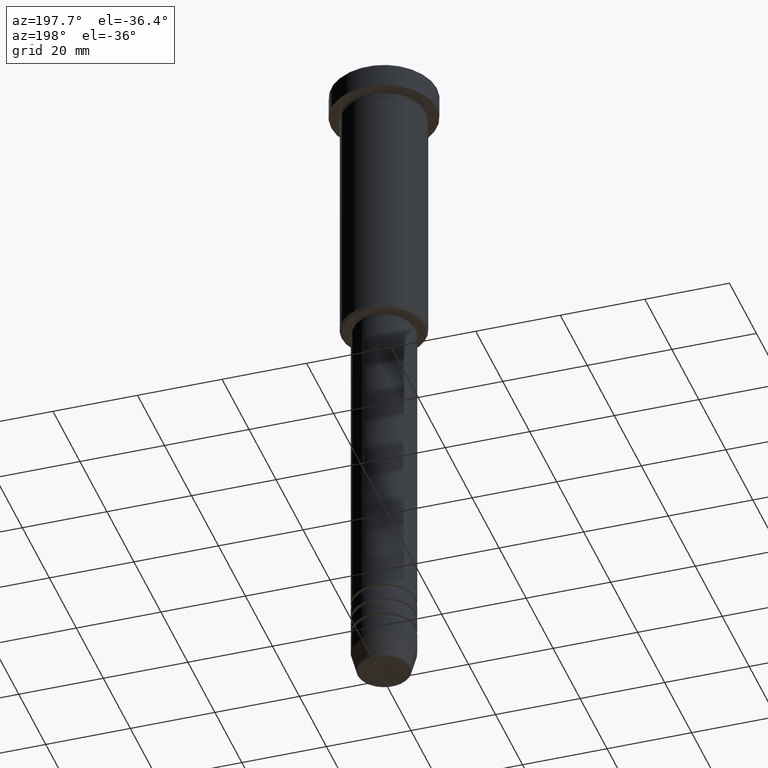
[diagram: clean part render]
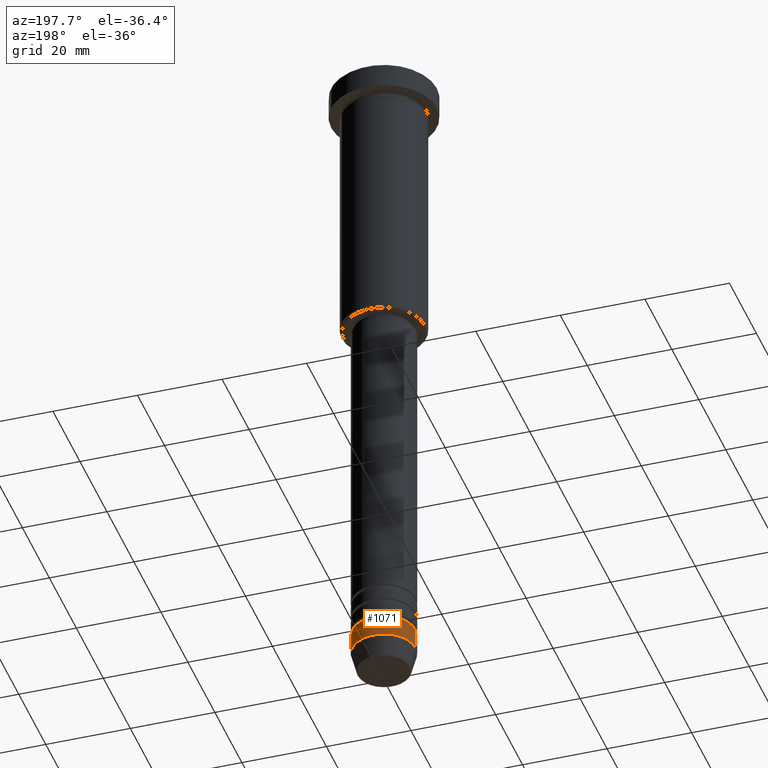
[diagram: same view with one face highlighted and labeled with its STEP entity id]
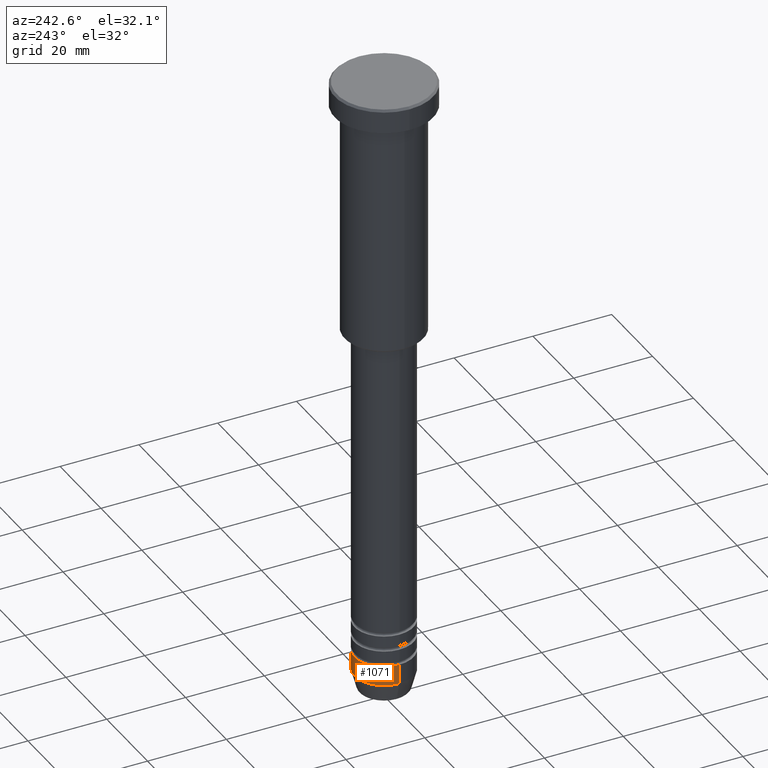
[diagram: same view with one face highlighted and labeled with its STEP entity id]
A machine part, auxiliary view. The second image highlights one B-rep face of the part: STEP entity #1071.
A second angle (auxiliary view) of the same face is appended — the face is thin or edge-on in the first view.
In plain terms, the highlighted cylindrical surface (edge-blend (fillet) strip) has radius 7.5 mm, axis along (-0, -0, 1).
Its self-contained STEP definition (entity closure, byte-faithful):
#26 = VECTOR ( 'NONE', #136, 1000.000000000000000 ) ;
#61 = CIRCLE ( 'NONE', #1091, 7.500000000000000000 ) ;
#62 = VECTOR ( 'NONE', #1172, 1000.000000000000000 ) ;
#71 = EDGE_CURVE ( 'NONE', #314, #848, #61, .T. ) ;
#101 = DIRECTION ( 'NONE',  ( -0.000000000000000000, -0.000000000000000000, 1.000000000000000000 ) ) ;
#118 = CARTESIAN_POINT ( 'NONE',  ( 0.000000000000000000, 0.000000000000000000, -156.0000000000000284 ) ) ;
#121 = VERTEX_POINT ( 'NONE', #464 ) ;
#128 = CARTESIAN_POINT ( 'NONE',  ( 7.500000000000000000, 0.000000000000000000, -156.0000000000000284 ) ) ;
#136 = DIRECTION ( 'NONE',  ( -0.000000000000000000, -0.000000000000000000, 1.000000000000000000 ) ) ;
#169 = CARTESIAN_POINT ( 'NONE',  ( -7.500000000000000000, 9.184850993605147944E-16, -151.0000000000000284 ) ) ;
#188 = CYLINDRICAL_SURFACE ( 'NONE', #541, 7.500000000000000000 ) ;
#251 = DIRECTION ( 'NONE',  ( -0.000000000000000000, -0.000000000000000000, 1.000000000000000000 ) ) ;
#292 = ORIENTED_EDGE ( 'NONE', *, *, #352, .T. ) ;
#314 = VERTEX_POINT ( 'NONE', #944 ) ;
#337 = CARTESIAN_POINT ( 'NONE',  ( 0.000000000000000000, 0.000000000000000000, -151.0000000000000284 ) ) ;
#352 = EDGE_CURVE ( 'NONE', #1175, #121, #890, .T. ) ;
#421 = CARTESIAN_POINT ( 'NONE',  ( -7.500000000000000000, 9.184850993605147944E-16, 0.000000000000000000 ) ) ;
#434 = EDGE_CURVE ( 'NONE', #1175, #314, #1158, .T. ) ;
#463 = FACE_OUTER_BOUND ( 'NONE', #827, .T. ) ;
#464 = CARTESIAN_POINT ( 'NONE',  ( -7.500000000000000000, 9.184850993605147944E-16, -156.0000000000000284 ) ) ;
#541 = AXIS2_PLACEMENT_3D ( 'NONE', #1173, #101, #842 ) ;
#601 = LINE ( 'NONE', #421, #26 ) ;
#604 = CARTESIAN_POINT ( 'NONE',  ( 7.500000000000000000, 0.000000000000000000, 0.000000000000000000 ) ) ;
#681 = AXIS2_PLACEMENT_3D ( 'NONE', #118, #1131, #1111 ) ;
#712 = EDGE_CURVE ( 'NONE', #121, #848, #601, .T. ) ;
#762 = ORIENTED_EDGE ( 'NONE', *, *, #712, .T. ) ;
#793 = DIRECTION ( 'NONE',  ( 1.000000000000000000, 0.000000000000000000, 0.000000000000000000 ) ) ;
#827 = EDGE_LOOP ( 'NONE', ( #292, #762, #1032, #953 ) ) ;
#842 = DIRECTION ( 'NONE',  ( 1.000000000000000000, 0.000000000000000000, 0.000000000000000000 ) ) ;
#848 = VERTEX_POINT ( 'NONE', #169 ) ;
#890 = CIRCLE ( 'NONE', #681, 7.500000000000000000 ) ;
#944 = CARTESIAN_POINT ( 'NONE',  ( 7.500000000000000000, 0.000000000000000000, -151.0000000000000284 ) ) ;
#953 = ORIENTED_EDGE ( 'NONE', *, *, #434, .F. ) ;
#1032 = ORIENTED_EDGE ( 'NONE', *, *, #71, .F. ) ;
#1071 = ADVANCED_FACE ( 'NONE', ( #463 ), #188, .T. ) ;
#1091 = AXIS2_PLACEMENT_3D ( 'NONE', #337, #251, #793 ) ;
#1111 = DIRECTION ( 'NONE',  ( 1.000000000000000000, 0.000000000000000000, 0.000000000000000000 ) ) ;
#1131 = DIRECTION ( 'NONE',  ( -0.000000000000000000, -0.000000000000000000, 1.000000000000000000 ) ) ;
#1158 = LINE ( 'NONE', #604, #62 ) ;
#1172 = DIRECTION ( 'NONE',  ( -0.000000000000000000, -0.000000000000000000, 1.000000000000000000 ) ) ;
#1173 = CARTESIAN_POINT ( 'NONE',  ( 0.000000000000000000, 0.000000000000000000, 0.000000000000000000 ) ) ;
#1175 = VERTEX_POINT ( 'NONE', #128 ) ;